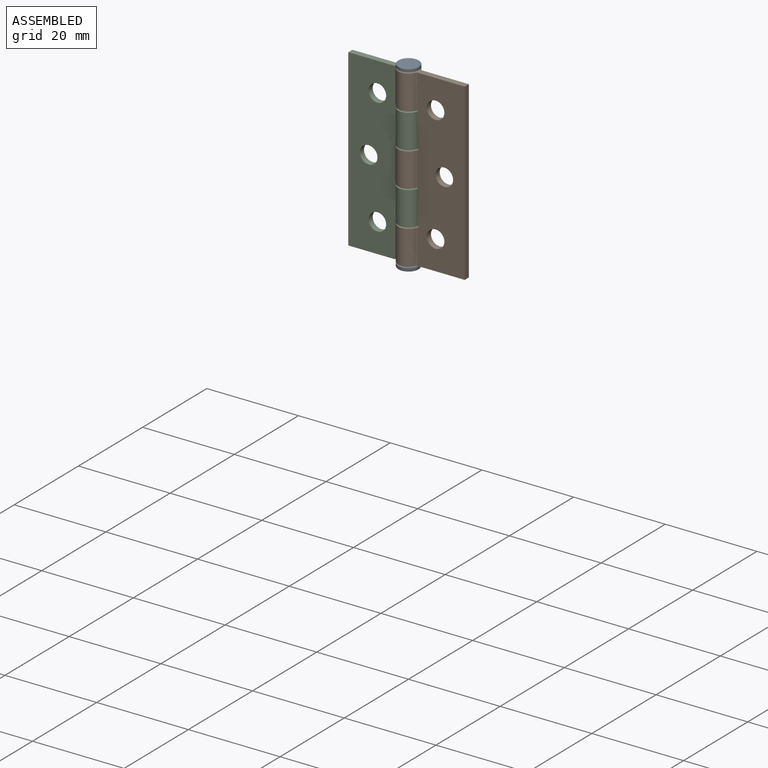
[diagram: assembled view]
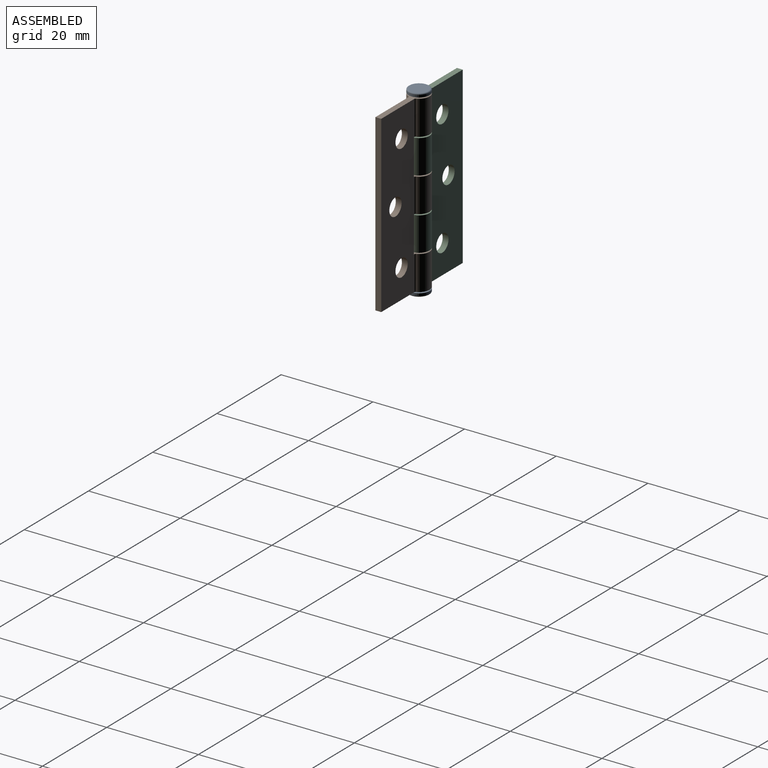
[diagram: assembled view, second angle]
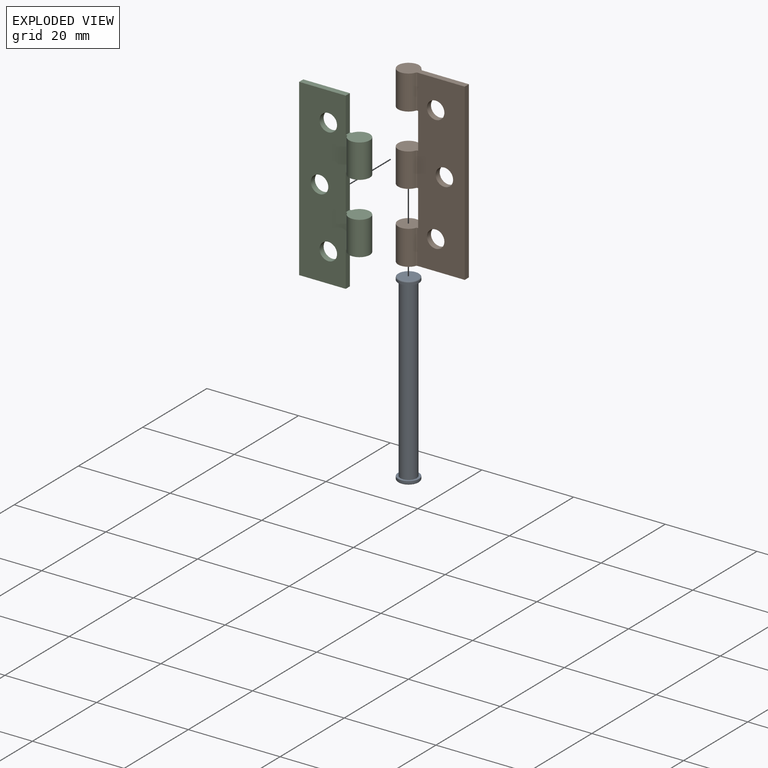
[diagram: exploded view]
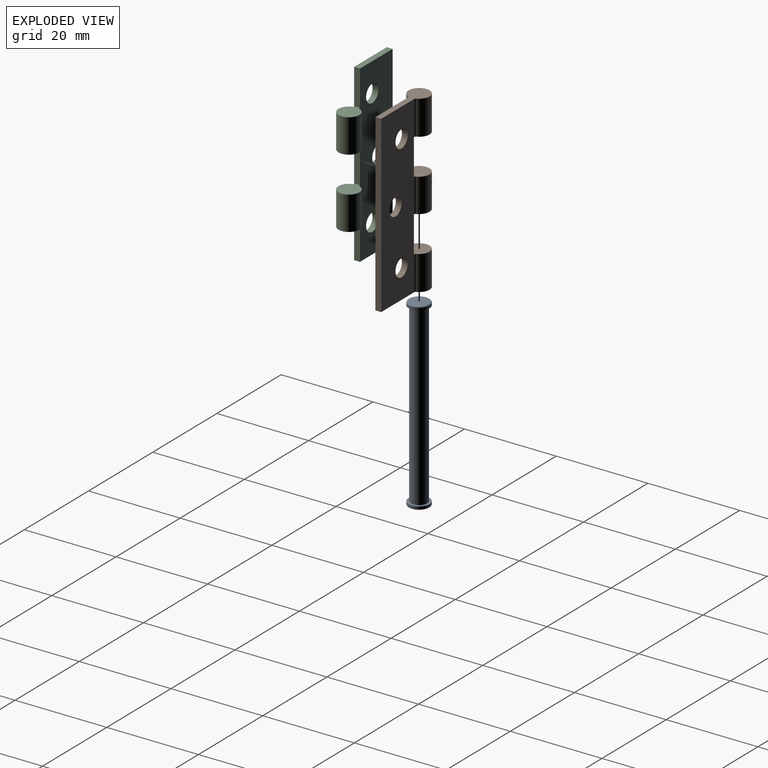
[diagram: exploded view, second angle]
ASSEMBLY  parts=3 mates=2
PART A: 9 faces, bbox 4.9x4.9x40.1 mm
  f0: cylinder r=1.78mm len=38.61mm, axis (0,0,-1), area 431.3mm2, adj f1,f6
  f1: plane 4.57x4.57mm, normal (0,0,1), area 6.5mm2, adj f0,f2
  f2: cylinder r=2.29mm len=4.57mm, axis (0,0,-1), area 7.3mm2, adj f1,f7
  f3: plane 4.06x4.06mm, normal (0,0,-1), area 13mm2, adj f7
  f4: plane 4.06x4.06mm, normal (0,0,1), area 13mm2, adj f8
  f5: cylinder r=2.29mm len=4.57mm, axis (0,0,-1), area 7.3mm2, adj f6,f8
  f6: plane 4.57x4.57mm, normal (0,0,-1), area 6.5mm2, adj f0,f5
  f7: torus R=2.03mm, axis (0,0,-1), area 5.5mm2, adj f2,f3
  f8: torus R=2.03mm, axis (0,0,-1), area 5.5mm2, adj f4,f5
PART B: 23 faces, bbox 15x4.6x38.1 mm
  f0: plane 38.1x10.32mm, normal (0,-1,0), area 356.5mm2, adj f2,f3,f4,f5,f6,f7,f8,f9
  f1: plane 38.1x10.32mm, normal (0,1,0), area 356.5mm2, adj f2,f3,f4,f5,f6,f7,f8,f9
  f2: plane 7.87x1.27mm, normal (-1,0,0), area 10mm2, adj f0,f1,f3,f10
  f3: plane 4.83x4.57mm, normal (0,0,1), area 16.8mm2, adj f0,f1,f2,f15,f19,f20
  f4: plane 4.83x4.57mm, normal (0,0,-1), area 16.8mm2, adj f0,f1,f5,f15,f19,f20
  f5: plane 7.87x1.27mm, normal (-1,0,0), area 10mm2, adj f0,f1,f4,f6
  f6: plane 4.83x4.57mm, normal (0,0,1), area 16.8mm2, adj f0,f1,f5,f14,f21,f22
  f7: plane 14.99x4.57mm, normal (0,0,-1), area 29.7mm2, adj f0,f1,f8,f14,f21,f22
  f8: plane 38.1x1.27mm, normal (1,0,0), area 48.4mm2, adj f0,f1,f7,f9
  f9: plane 14.99x4.57mm, normal (0,0,1), area 29.7mm2, adj f0,f1,f8,f16,f17,f18
  f10: plane 4.83x4.57mm, normal (0,0,-1), area 16.8mm2, adj f0,f1,f2,f16,f17,f18
  f11: cylinder r=1.91mm len=3.81mm, axis (0,1,0), area 15.2mm2, adj f0,f1
  f12: cylinder r=1.91mm len=3.81mm, axis (0,1,0), area 15.2mm2, adj f0,f1
  f13: cylinder r=1.91mm len=3.81mm, axis (0,1,0), area 15.2mm2, adj f0,f1
  f14: cylinder r=2.29mm len=7.49mm, axis (0,0,-1), area 95.4mm2, adj f6,f7,f21,f22
  f15: cylinder r=2.29mm len=7.37mm, axis (0,0,-1), area 93.8mm2, adj f3,f4,f19,f20
  f16: cylinder r=2.29mm len=7.49mm, axis (0,0,-1), area 95.4mm2, adj f9,f10,f17,f18
  f17: cylinder r=0.25mm len=7.49mm, axis (0,0,-1), area 2.3mm2, adj f0,f9,f10,f16
  f18: cylinder r=0.25mm len=7.49mm, axis (0,0,-1), area 2.3mm2, adj f1,f9,f10,f16
  f19: cylinder r=0.25mm len=7.37mm, axis (0,0,-1), area 2.3mm2, adj f0,f3,f4,f15
  f20: cylinder r=0.25mm len=7.37mm, axis (0,0,-1), area 2.3mm2, adj f1,f3,f4,f15
  f21: cylinder r=0.25mm len=7.49mm, axis (0,0,-1), area 2.3mm2, adj f0,f6,f7,f14
  f22: cylinder r=0.25mm len=7.49mm, axis (0,0,-1), area 2.3mm2, adj f1,f6,f7,f14
PART C: 21 faces, bbox 15x4.6x38.1 mm
  f0: plane 38.1x10.32mm, normal (0,-1,0), area 355.3mm2, adj f2,f3,f4,f5,f6,f7,f8,f9
  f1: plane 38.1x10.32mm, normal (0,1,0), area 355.3mm2, adj f2,f3,f4,f5,f6,f7,f8,f9
  f2: plane 7.75x1.27mm, normal (1,0,0), area 9.8mm2, adj f0,f1,f3,f14
  f3: plane 4.83x4.57mm, normal (0,0,-1), area 16.8mm2, adj f0,f1,f2,f16,f17,f18
  f4: plane 4.83x4.57mm, normal (0,0,1), area 16.8mm2, adj f0,f1,f5,f16,f17,f18
  f5: plane 7.87x1.27mm, normal (1,0,0), area 10mm2, adj f0,f1,f4,f6
  f6: plane 4.83x4.57mm, normal (0,0,-1), area 16.8mm2, adj f0,f1,f5,f15,f19,f20
  f7: plane 4.83x4.57mm, normal (0,0,1), area 16.8mm2, adj f0,f1,f8,f15,f19,f20
  f8: plane 7.75x1.27mm, normal (1,0,0), area 9.8mm2, adj f0,f1,f7,f9
  f9: plane 10.16x1.27mm, normal (0,0,1), area 12.9mm2, adj f0,f1,f8,f10
  f10: plane 38.1x1.27mm, normal (-1,0,0), area 48.4mm2, adj f0,f1,f9,f14
  f11: cylinder r=1.91mm len=3.81mm, axis (0,1,0), area 15.2mm2, adj f0,f1
  f12: cylinder r=1.91mm len=3.81mm, axis (0,1,0), area 15.2mm2, adj f0,f1
  f13: cylinder r=1.91mm len=3.81mm, axis (0,1,0), area 15.2mm2, adj f0,f1
  f14: plane 10.16x1.27mm, normal (0,0,-1), area 12.9mm2, adj f0,f1,f2,f10
  f15: cylinder r=2.29mm len=7.37mm, axis (0,0,-1), area 93.8mm2, adj f6,f7,f19,f20
  f16: cylinder r=2.29mm len=7.37mm, axis (0,0,-1), area 93.8mm2, adj f3,f4,f17,f18
  f17: cylinder r=0.25mm len=7.37mm, axis (0,0,-1), area 2.3mm2, adj f0,f3,f4,f16
  f18: cylinder r=0.25mm len=7.37mm, axis (0,0,-1), area 2.3mm2, adj f1,f3,f4,f16
  f19: cylinder r=0.25mm len=7.37mm, axis (0,0,-1), area 2.3mm2, adj f0,f6,f7,f15
  f20: cylinder r=0.25mm len=7.37mm, axis (0,0,-1), area 2.3mm2, adj f1,f6,f7,f15
PLACE A t=(-0.04,0.09,-0.13)mm
PLACE B t=(-0.04,0.09,-0.13)mm
PLACE C t=(-0.04,0.09,-0.13)mm
MATE fastened B.f14 <-> A.f0  axis (0,0,-1) through (-0.04,0.09,18.92)mm
MATE fastened C.f15 <-> B.f14  axis (0,0,-1) through (-0.04,0.09,11.18)mm
